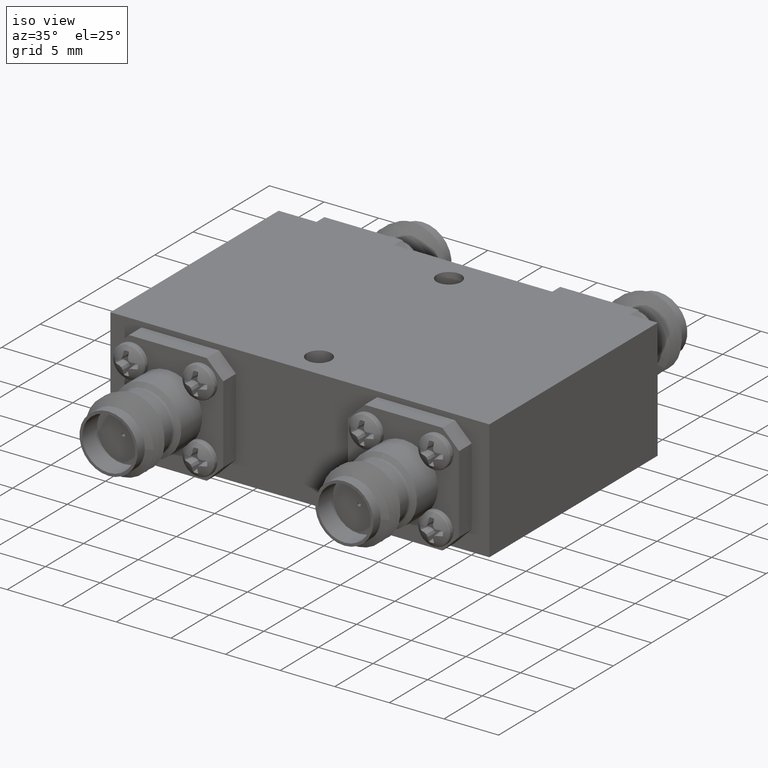
[diagram: clean part render]
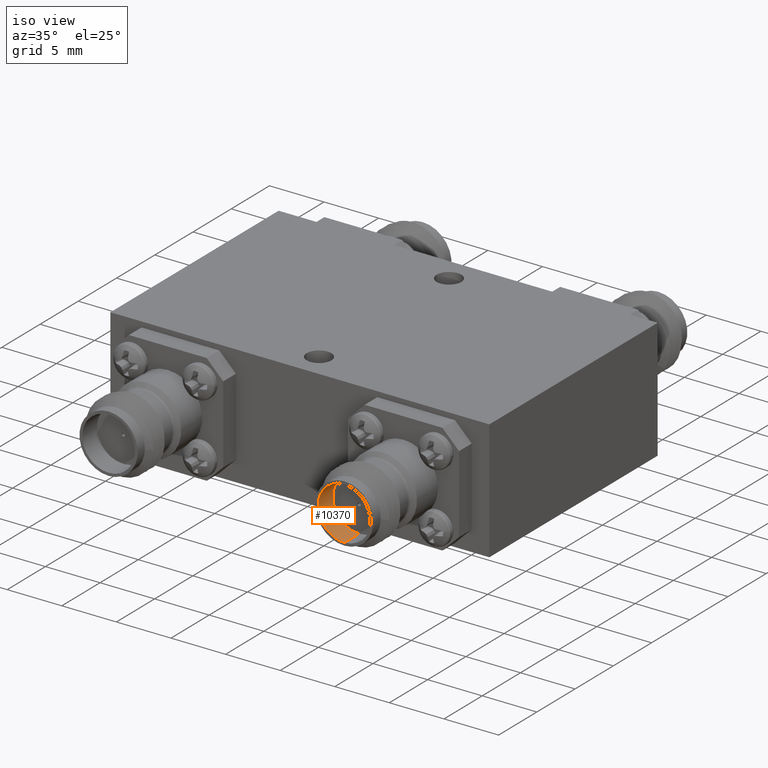
[diagram: same view with one face highlighted and labeled with its STEP entity id]
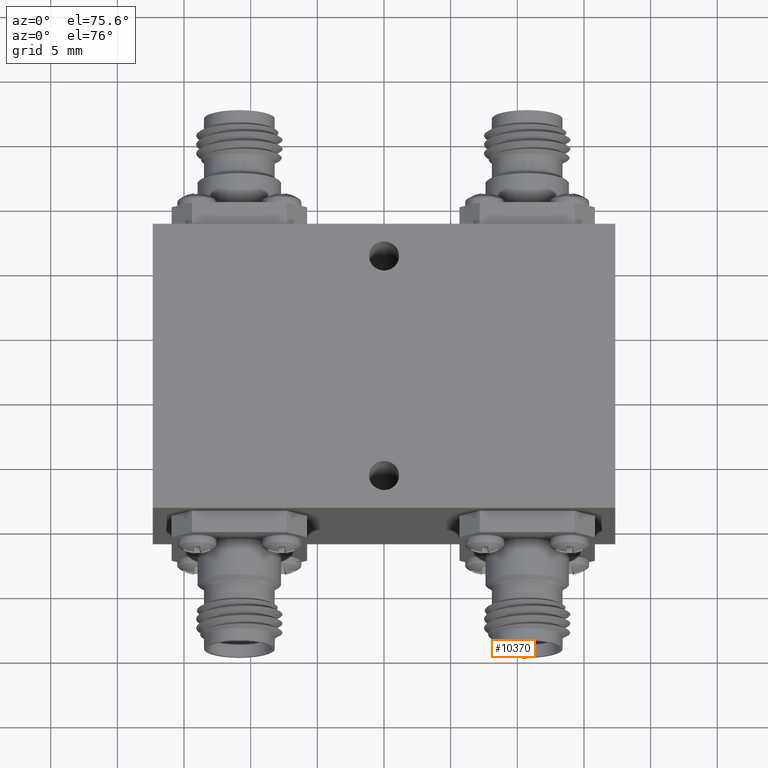
[diagram: same view with one face highlighted and labeled with its STEP entity id]
A machine part, iso view. The second image highlights one B-rep face of the part: STEP entity #10370.
A second angle (auxiliary view) of the same face is appended — the face is thin or edge-on in the first view.
In plain terms, the highlighted cylindrical surface (edge-blend (fillet) strip) has radius 2.413 mm, axis along (0, -1, 0).
Its self-contained STEP definition (entity closure, byte-faithful):
#66 = VERTEX_POINT ( 'NONE', #80799 ) ;
#2836 = VERTEX_POINT ( 'NONE', #25555 ) ;
#3692 = VECTOR ( 'NONE', #60296, 39.37007874015748100 ) ;
#4408 = DIRECTION ( 'NONE',  ( 0.0000000000000000000, -1.000000000000000000, 0.0000000000000000000 ) ) ;
#9901 = AXIS2_PLACEMENT_3D ( 'NONE', #36689, #55264, #17882 ) ;
#10370 = ADVANCED_FACE ( 'NONE', ( #16967 ), #19895, .F. ) ;
#12496 = CARTESIAN_POINT ( 'NONE',  ( 0.4228346456692911300, -0.8080708661417321800, 0.2165354330708660600 ) ) ;
#16967 = FACE_OUTER_BOUND ( 'NONE', #35522, .T. ) ;
#17449 = CARTESIAN_POINT ( 'NONE',  ( 0.4228346456692911300, -0.7320708661417321100, 0.3115354330708660600 ) ) ;
#17770 = EDGE_CURVE ( 'NONE', #2836, #60529, #24803, .T. ) ;
#17882 = DIRECTION ( 'NONE',  ( 0.0000000000000000000, 0.0000000000000000000, 1.000000000000000000 ) ) ;
#18556 = AXIS2_PLACEMENT_3D ( 'NONE', #55276, #67862, #43235 ) ;
#19895 = CYLINDRICAL_SURFACE ( 'NONE', #9901, 0.09500000000000001500 ) ;
#20521 = VECTOR ( 'NONE', #4408, 39.37007874015748100 ) ;
#24803 = CIRCLE ( 'NONE', #38026, 0.09500000000000001500 ) ;
#25027 = DIRECTION ( 'NONE',  ( 0.0000000000000000000, 0.0000000000000000000, 1.000000000000000000 ) ) ;
#25555 = CARTESIAN_POINT ( 'NONE',  ( 0.4228346456692911300, -0.8080708661417321800, 0.3115354330708660600 ) ) ;
#27274 = ORIENTED_EDGE ( 'NONE', *, *, #40955, .F. ) ;
#35522 = EDGE_LOOP ( 'NONE', ( #27274, #40642, #70608, #61773 ) ) ;
#36655 = VERTEX_POINT ( 'NONE', #43402 ) ;
#36689 = CARTESIAN_POINT ( 'NONE',  ( 0.4228346456692911300, -0.7320708661417321100, 0.2165354330708660600 ) ) ;
#38026 = AXIS2_PLACEMENT_3D ( 'NONE', #12496, #38093, #25027 ) ;
#38093 = DIRECTION ( 'NONE',  ( 0.0000000000000000000, -1.000000000000000000, 0.0000000000000000000 ) ) ;
#40642 = ORIENTED_EDGE ( 'NONE', *, *, #48991, .F. ) ;
#40955 = EDGE_CURVE ( 'NONE', #36655, #60529, #40977, .T. ) ;
#40977 = LINE ( 'NONE', #41710, #20521 ) ;
#41710 = CARTESIAN_POINT ( 'NONE',  ( 0.4228346456692911300, -0.7320708661417321100, 0.1215354330708660800 ) ) ;
#43235 = DIRECTION ( 'NONE',  ( 0.0000000000000000000, 0.0000000000000000000, 1.000000000000000000 ) ) ;
#43402 = CARTESIAN_POINT ( 'NONE',  ( 0.4228346456692911300, -0.7320708661417321100, 0.1215354330708660800 ) ) ;
#43461 = EDGE_CURVE ( 'NONE', #66, #2836, #65135, .T. ) ;
#48991 = EDGE_CURVE ( 'NONE', #66, #36655, #73532, .T. ) ;
#55264 = DIRECTION ( 'NONE',  ( 0.0000000000000000000, -1.000000000000000000, 0.0000000000000000000 ) ) ;
#55276 = CARTESIAN_POINT ( 'NONE',  ( 0.4228346456692911300, -0.7320708661417321100, 0.2165354330708660600 ) ) ;
#60296 = DIRECTION ( 'NONE',  ( 0.0000000000000000000, -1.000000000000000000, 0.0000000000000000000 ) ) ;
#60529 = VERTEX_POINT ( 'NONE', #61100 ) ;
#61100 = CARTESIAN_POINT ( 'NONE',  ( 0.4228346456692911300, -0.8080708661417321800, 0.1215354330708660800 ) ) ;
#61773 = ORIENTED_EDGE ( 'NONE', *, *, #17770, .T. ) ;
#65135 = LINE ( 'NONE', #17449, #3692 ) ;
#67862 = DIRECTION ( 'NONE',  ( 0.0000000000000000000, -1.000000000000000000, 0.0000000000000000000 ) ) ;
#70608 = ORIENTED_EDGE ( 'NONE', *, *, #43461, .T. ) ;
#73532 = CIRCLE ( 'NONE', #18556, 0.09500000000000001500 ) ;
#80799 = CARTESIAN_POINT ( 'NONE',  ( 0.4228346456692911300, -0.7320708661417321100, 0.3115354330708660600 ) ) ;